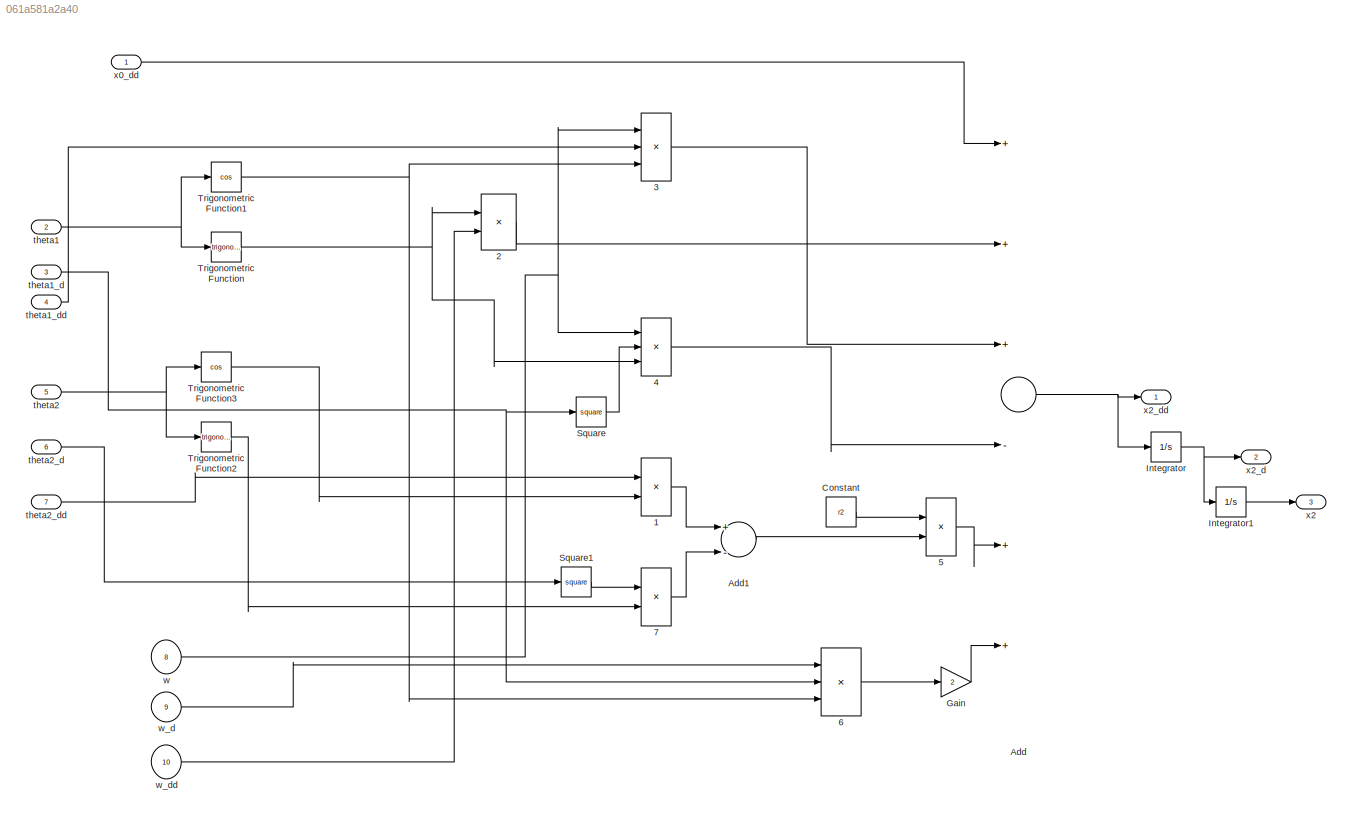
MODEL slx_061a581a2a40
KIND model
CONFIG AbsTol = auto
CONFIG EnableMultiTasking = off
CONFIG FixedStep = auto
CONFIG MaxStep = auto
CONFIG MinStep = auto
CONFIG RelTol = 1e-3
CONFIG SampleTimeConstraint = Unconstrained
CONFIG Solver = VariableStepAuto
CONFIG SolverName = VariableStepAuto
CONFIG StartTime = 0.0
CONFIG StopTime = 10.0
BLOCK [Product] 1
  InputSameDT = off
  OutDataTypeStr = Inherit: Inherit via internal rule
  Ports = [2, 1]
  RndMeth = Floor
  SaturateOnIntegerOverflow = off
BLOCK [Product] 2
  InputSameDT = off
  OutDataTypeStr = Inherit: Inherit via internal rule
  Ports = [2, 1]
  RndMeth = Floor
  SaturateOnIntegerOverflow = off
BLOCK [Product] 3
  InputSameDT = off
  Inputs = 3
  OutDataTypeStr = Inherit: Inherit via internal rule
  Ports = [3, 1]
  RndMeth = Floor
  SaturateOnIntegerOverflow = off
BLOCK [Product] 4
  InputSameDT = off
  Inputs = 3
  OutDataTypeStr = Inherit: Inherit via internal rule
  Ports = [3, 1]
  RndMeth = Floor
  SaturateOnIntegerOverflow = off
BLOCK [Product] 5
  InputSameDT = off
  OutDataTypeStr = Inherit: Inherit via internal rule
  Ports = [2, 1]
  RndMeth = Floor
  SaturateOnIntegerOverflow = off
BLOCK [Product] 6
  InputSameDT = off
  Inputs = 3
  OutDataTypeStr = Inherit: Inherit via internal rule
  Ports = [3, 1]
  RndMeth = Floor
  SaturateOnIntegerOverflow = off
BLOCK [Product] 7
  InputSameDT = off
  OutDataTypeStr = Inherit: Inherit via internal rule
  Ports = [2, 1]
  RndMeth = Floor
  SaturateOnIntegerOverflow = off
BLOCK [Sum] Add
  InputSameDT = off
  Inputs = +++-++
  OutDataTypeStr = Inherit: Inherit via internal rule
  Ports = [6, 1]
  SaturateOnIntegerOverflow = off
BLOCK [Sum] Add1
  InputSameDT = off
  Inputs = +-
  OutDataTypeStr = Inherit: Inherit via internal rule
  Ports = [2, 1]
  SaturateOnIntegerOverflow = off
BLOCK [Constant] Constant
  Value = r2
BLOCK [Gain] Gain
  Gain = 2
  OutDataTypeStr = Inherit: Inherit via internal rule
  ParamDataTypeStr = Inherit: Inherit via internal rule
  SaturateOnIntegerOverflow = off
BLOCK [Integrator] Integrator
  InitialCondition = ini_x2_d
  Ports = [1, 1]
BLOCK [Integrator] Integrator1
  InitialCondition = ini_x2
  Ports = [1, 1]
BLOCK [Math] Square
  Operator = square
  Ports = [1, 1]
  SignedPower = off
BLOCK [Math] Square1
  Operator = square
  Ports = [1, 1]
  SignedPower = off
BLOCK [Trigonometry] Trigonometric Function
  Ports = [1, 1]
BLOCK [Trigonometry] Trigonometric Function1
  Operator = cos
  Ports = [1, 1]
BLOCK [Trigonometry] Trigonometric Function2
  Ports = [1, 1]
BLOCK [Trigonometry] Trigonometric Function3
  Operator = cos
  Ports = [1, 1]
BLOCK [Inport] theta1
  IconDisplay = Port number
  Port = 2
BLOCK [Inport] theta1_d
  IconDisplay = Port number
  Port = 3
BLOCK [Inport] theta1_dd
  IconDisplay = Port number
  Port = 4
BLOCK [Inport] theta2
  IconDisplay = Port number
  Port = 5
BLOCK [Inport] theta2_d
  IconDisplay = Port number
  Port = 6
BLOCK [Inport] theta2_dd 
  IconDisplay = Port number
  Port = 7
BLOCK [Inport] w
  IconDisplay = Port number
  Port = 8
BLOCK [Inport] w_d
  IconDisplay = Port number
  Port = 9
BLOCK [Inport] w_dd
  IconDisplay = Port number
  Port = 10
BLOCK [Inport] x0_dd
  IconDisplay = Port number
BLOCK [Outport] x2
  IconDisplay = Port number
  Port = 3
BLOCK [Outport] x2_d
  IconDisplay = Port number
  Port = 2
BLOCK [Outport] x2_dd
  IconDisplay = Port number
LINE 1:1 -> Add1:1
LINE 2:1 -> Add:2
LINE 3:1 -> Add:3
LINE 4:1 -> Add:4
LINE 5:1 -> Add:5
LINE 6:1 -> Gain:1
LINE 7:1 -> Add1:2
LINE Add1:1 -> 5:2
NET Add:1 -> Integrator:1, x2_dd:1
LINE Constant:1 -> 5:1
LINE Gain:1 -> Add:6
LINE Integrator1:1 -> x2:1
NET Integrator:1 -> Integrator1:1, x2_d:1
LINE Square1:1 -> 7:1
LINE Square:1 -> 4:2
NET Trigonometric Function1:1 -> 3:3, 6:3
LINE Trigonometric Function2:1 -> 7:2
LINE Trigonometric Function3:1 -> 1:2
NET Trigonometric Function:1 -> 2:1, 4:3
NET theta1:1 -> Trigonometric Function1:1, Trigonometric Function:1
NET theta1_d:1 -> 6:2, Square:1
LINE theta1_dd:1 -> 3:2
NET theta2:1 -> Trigonometric Function2:1, Trigonometric Function3:1
LINE theta2_d:1 -> Square1:1
LINE theta2_dd :1 -> 1:1
NET w:1 -> 3:1, 4:1
LINE w_d:1 -> 6:1
LINE w_dd:1 -> 2:2
LINE x0_dd:1 -> Add:1
note: NET lines group one-source signal fan-out (src -> all destinations, sorted); 1:1 wires keep LINE
